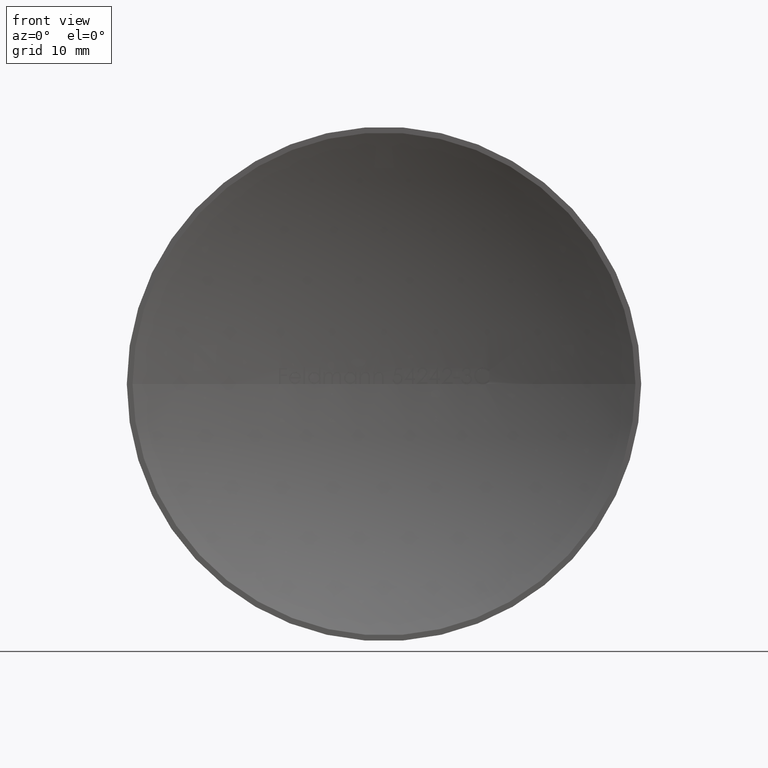
[diagram: clean part render]
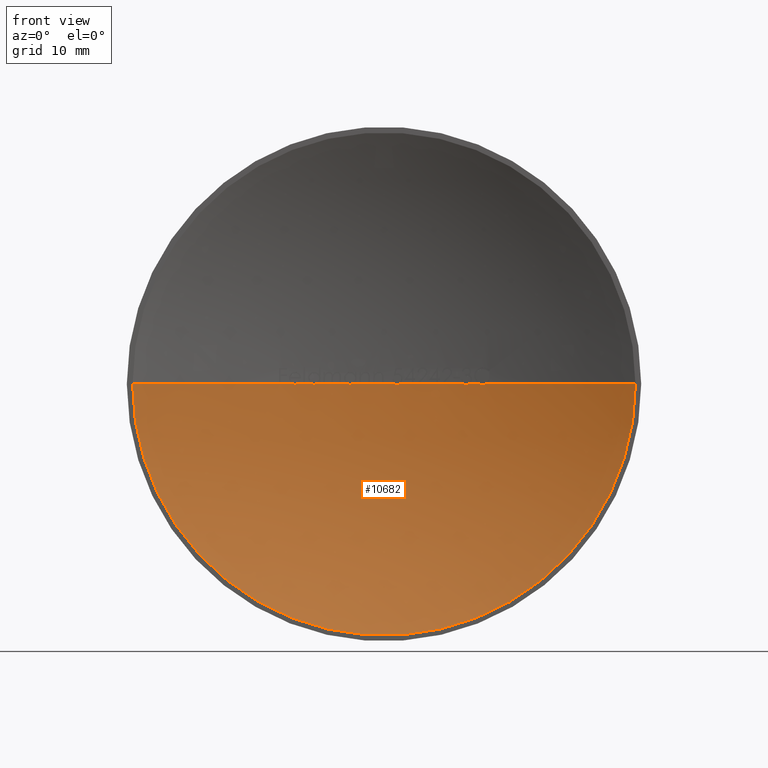
[diagram: same view with one face highlighted and labeled with its STEP entity id]
A machine part, front view. The second image highlights one B-rep face of the part: STEP entity #10682.
In plain terms, the highlighted spherical surface has radius 45.444 mm.
Its self-contained STEP definition (entity closure, byte-faithful):
#14 = CARTESIAN_POINT ( 'NONE',  ( -2.679114103950558600, 4.920964443180069200, -0.005846972361898890000 ) ) ;
#16 = ORIENTED_EDGE ( 'NONE', *, *, #3680, .T. ) ;
#17 = VERTEX_POINT ( 'NONE', #167 ) ;
#27 = CARTESIAN_POINT ( 'NONE',  ( 1.386522870055565900E-014, -40.44399999999998800, 0.0000000000000000000 ) ) ;
#81 = VERTEX_POINT ( 'NONE', #4336 ) ;
#83 = CARTESIAN_POINT ( 'NONE',  ( -7.314381847441536500, 4.407496352543542000, -0.01628311171690268900 ) ) ;
#107 = VERTEX_POINT ( 'NONE', #6018 ) ;
#116 = CARTESIAN_POINT ( 'NONE',  ( 6.724451272614726500, 4.499730931526225500, -0.02989297932489220000 ) ) ;
#167 = CARTESIAN_POINT ( 'NONE',  ( 3.261283127775577500E-013, 4.999999999999990200, 0.0000000000000000000 ) ) ;
#171 = DIRECTION ( 'NONE',  ( 0.0000000000000000000, 0.0000000000000000000, 1.000000000000000000 ) ) ;
#188 = CARTESIAN_POINT ( 'NONE',  ( -7.393169713930002600, 4.394607574660386500, -0.01574187870364589200 ) ) ;
#212 = DIRECTION ( 'NONE',  ( 1.000000000000000000, 0.0000000000000000000, 0.0000000000000000000 ) ) ;
#241 = CARTESIAN_POINT ( 'NONE',  ( 8.133605435363257600, 4.266182822167549700, -0.03392094017094016800 ) ) ;
#248 = DIRECTION ( 'NONE',  ( 0.0000000000000000000, -0.0000000000000000000, 1.000000000000000000 ) ) ;
#325 = DIRECTION ( 'NONE',  ( -1.000000000000000000, 0.0000000000000000000, 1.224646799147353200E-016 ) ) ;
#342 = DIRECTION ( 'NONE',  ( -1.000000000000000000, 0.0000000000000000000, 1.224646799147353200E-016 ) ) ;
#370 = CARTESIAN_POINT ( 'NONE',  ( 1.386522870055565900E-014, -40.44399999999998800, 0.0000000000000000000 ) ) ;
#398 = EDGE_CURVE ( 'NONE', #9395, #6154, #8161, .T. ) ;
#448 = CARTESIAN_POINT ( 'NONE',  ( -5.762849726228624000, 4.633116271733261900, -0.01696047008547015000 ) ) ;
#473 = DIRECTION ( 'NONE',  ( 1.000000000000000000, 0.0000000000000000000, 0.0000000000000000000 ) ) ;
#501 = VERTEX_POINT ( 'NONE', #8945 ) ;
#506 = EDGE_CURVE ( 'NONE', #5462, #107, #5511, .T. ) ;
#516 = CARTESIAN_POINT ( 'NONE',  ( 1.014728533184215500, 4.988661800723159300, -0.03003825177654923000 ) ) ;
#530 = DIRECTION ( 'NONE',  ( 0.0000000000000000000, -0.0000000000000000000, 1.000000000000000000 ) ) ;
#572 = VERTEX_POINT ( 'NONE', #7094 ) ;
#606 = AXIS2_PLACEMENT_3D ( 'NONE', #10703, #248, #7922 ) ;
#630 = EDGE_CURVE ( 'NONE', #8955, #8199, #3181, .T. ) ;
#689 = CARTESIAN_POINT ( 'NONE',  ( 1.386522870055565900E-014, -40.44399999999998800, 0.0000000000000000000 ) ) ;
#712 = CARTESIAN_POINT ( 'NONE',  ( 8.133605435363257600, 4.266182822167549700, -0.03392094017094016800 ) ) ;
#718 = CIRCLE ( 'NONE', #4372, 45.44399999999997400 ) ;
#727 = DIRECTION ( 'NONE',  ( -1.000000000000000000, 0.0000000000000000000, 1.224646799147353200E-016 ) ) ;
#734 = DIRECTION ( 'NONE',  ( 0.0000000000000000000, -0.0000000000000000000, 1.000000000000000000 ) ) ;
#797 = EDGE_CURVE ( 'NONE', #7213, #5435, #4330, .T. ) ;
#815 = DIRECTION ( 'NONE',  ( 1.000000000000000000, 0.0000000000000000000, 0.0000000000000000000 ) ) ;
#864 = VERTEX_POINT ( 'NONE', #241 ) ;
#874 = CIRCLE ( 'NONE', #11401, 45.44399999999997400 ) ;
#896 = DIRECTION ( 'NONE',  ( 1.000000000000000000, 0.0000000000000000000, 0.0000000000000000000 ) ) ;
#911 = ORIENTED_EDGE ( 'NONE', *, *, #9338, .T. ) ;
#915 = CARTESIAN_POINT ( 'NONE',  ( -0.04240117521366163600, 4.999980218950229400, 3.710188327710200200E-015 ) ) ;
#939 = CARTESIAN_POINT ( 'NONE',  ( 1.386522870055565900E-014, -40.44399999999998800, 0.0000000000000000000 ) ) ;
#941 = CARTESIAN_POINT ( 'NONE',  ( -7.333111059942088300, 4.404438093603746800, -0.01679781009455912400 ) ) ;
#948 = B_SPLINE_CURVE_WITH_KNOTS ( 'NONE', 3,
 ( #9863, #6129, #4164, #516, #1464, #3455, #5978, #9873 ),
 .UNSPECIFIED., .F., .F.,
 ( 4, 2, 2, 4 ),
 ( 0.0000000000000000000, 0.07081838298571586900, 0.1416367659714317400, 0.2832735319428635900 ),
 .UNSPECIFIED. ) ;
#973 = ORIENTED_EDGE ( 'NONE', *, *, #630, .T. ) ;
#993 = CARTESIAN_POINT ( 'NONE',  ( 5.622395833333349000, 4.650853377002071900, 3.681684523077653500E-015 ) ) ;
#999 = CARTESIAN_POINT ( 'NONE',  ( -6.504340277777768800, 4.532112477079168800, 3.550544559331930100E-015 ) ) ;
#1001 = CIRCLE ( 'NONE', #2943, 45.44399999999997400 ) ;
#1049 = ORIENTED_EDGE ( 'NONE', *, *, #6639, .T. ) ;
#1078 = AXIS2_PLACEMENT_3D ( 'NONE', #5407, #734, #815 ) ;
#1088 = CARTESIAN_POINT ( 'NONE',  ( 6.638206544388754800, 4.512558978705879300, -0.01193627597432813900 ) ) ;
#1093 = VERTEX_POINT ( 'NONE', #3965 ) ;
#1147 = AXIS2_PLACEMENT_3D ( 'NONE', #6918, #8662, #9638 ) ;
#1158 = DIRECTION ( 'NONE',  ( 0.0000000000000000000, -0.0000000000000000000, 1.000000000000000000 ) ) ;
#1217 = ORIENTED_EDGE ( 'NONE', *, *, #7167, .T. ) ;
#1264 = DIRECTION ( 'NONE',  ( 1.000000000000000000, 0.0000000000000000000, 0.0000000000000000000 ) ) ;
#1294 = EDGE_CURVE ( 'NONE', #17, #7607, #12006, .T. ) ;
#1304 = CARTESIAN_POINT ( 'NONE',  ( 1.386522870055565900E-014, -40.44399999999998800, 0.0000000000000000000 ) ) ;
#1313 = B_SPLINE_CURVE_WITH_KNOTS ( 'NONE', 3,
 ( #1426, #10733, #7995, #6992, #5149, #11740, #6095, #2393 ),
 .UNSPECIFIED., .F., .F.,
 ( 4, 2, 2, 4 ),
 ( 0.7251203329268308700, 0.8625601664634172700, 0.9312800832317086300, 1.000000000000000000 ),
 .UNSPECIFIED. ) ;
#1346 = AXIS2_PLACEMENT_3D ( 'NONE', #11609, #2088, #342 ) ;
#1348 = ORIENTED_EDGE ( 'NONE', *, *, #6998, .T. ) ;
#1349 = EDGE_CURVE ( 'NONE', #8950, #3156, #7275, .T. ) ;
#1357 = VERTEX_POINT ( 'NONE', #4271 ) ;
#1361 = EDGE_CURVE ( 'NONE', #9395, #5435, #3490, .T. ) ;
#1426 = CARTESIAN_POINT ( 'NONE',  ( 6.979097808173807300, 4.460891898451847300, 9.174615640513992500E-007 ) ) ;
#1439 = DIRECTION ( 'NONE',  ( 1.000000000000000000, 0.0000000000000000000, 0.0000000000000000000 ) ) ;
#1464 = CARTESIAN_POINT ( 'NONE',  ( 1.002372953610557700, 4.988937426252459100, -0.02840826843126044100 ) ) ;
#1486 = VERTEX_POINT ( 'NONE', #9036 ) ;
#1488 = CARTESIAN_POINT ( 'NONE',  ( 1.386522870055565900E-014, -40.44399999999998800, 0.0000000000000000000 ) ) ;
#1504 = CARTESIAN_POINT ( 'NONE',  ( -5.704693327859122800, 4.640515581860194400, -0.01425381855370564400 ) ) ;
#1545 = ORIENTED_EDGE ( 'NONE', *, *, #6067, .T. ) ;
#1556 = CARTESIAN_POINT ( 'NONE',  ( -4.316439636752120300, 4.794539817972398600, 0.0000000000000000000 ) ) ;
#1577 = DIRECTION ( 'NONE',  ( 1.000000000000000000, 0.0000000000000000000, 0.0000000000000000000 ) ) ;
#1581 = VERTEX_POINT ( 'NONE', #2198 ) ;
#1598 = ORIENTED_EDGE ( 'NONE', *, *, #4631, .F. ) ;
#1599 = CARTESIAN_POINT ( 'NONE',  ( -6.623063568376063700, 4.514782956940112300, 8.110913599561596300E-016 ) ) ;
#1606 = CARTESIAN_POINT ( 'NONE',  ( -5.367988782051274800, 4.681844395820127700, 3.286945139899200600E-016 ) ) ;
#1637 = CARTESIAN_POINT ( 'NONE',  ( 1.386522870055565900E-014, -40.44399999999998800, 0.0000000000000000000 ) ) ;
#1655 = CARTESIAN_POINT ( 'NONE',  ( -8.522636217948717200, 4.193672518809803400, 3.776991055038267300E-015 ) ) ;
#1656 = DIRECTION ( 'NONE',  ( 0.0000000000000000000, -0.0000000000000000000, 1.000000000000000000 ) ) ;
#1716 = CARTESIAN_POINT ( 'NONE',  ( 1.386522870055565900E-014, -40.44399999999998800, 0.0000000000000000000 ) ) ;
#1724 = DIRECTION ( 'NONE',  ( 0.0000000000000000000, 0.0000000000000000000, -1.000000000000000000 ) ) ;
#1856 = B_SPLINE_CURVE_WITH_KNOTS ( 'NONE', 3,
 ( #4389, #10977, #9165, #11019 ),
 .UNSPECIFIED., .F., .F.,
 ( 4, 4 ),
 ( 0.0000000000000000000, 0.1700438044894193600 ),
 .UNSPECIFIED. ) ;
#1931 = CARTESIAN_POINT ( 'NONE',  ( 1.386522870055565900E-014, -40.44399999999998800, 0.0000000000000000000 ) ) ;
#1968 = DIRECTION ( 'NONE',  ( 0.0000000000000000000, -0.0000000000000000000, 1.000000000000000000 ) ) ;
#1975 = CARTESIAN_POINT ( 'NONE',  ( -7.221433323400017200, 4.422564156808297400, -0.005997358268083809000 ) ) ;
#1989 = CARTESIAN_POINT ( 'NONE',  ( -7.340968466212600200, 4.403151864087489800, -0.01696047008547008800 ) ) ;
#2007 = CARTESIAN_POINT ( 'NONE',  ( 6.609436789837456400, 4.516788250580524400, -1.063111090567232100E-005 ) ) ;
#2015 = EDGE_CURVE ( 'NONE', #3852, #2351, #8973, .T. ) ;
#2024 = VERTEX_POINT ( 'NONE', #1989 ) ;
#2030 = ORIENTED_EDGE ( 'NONE', *, *, #11688, .T. ) ;
#2058 = DIRECTION ( 'NONE',  ( 1.000000000000000000, -6.932614350277812000E-015, 0.0000000000000000000 ) ) ;
#2081 = EDGE_CURVE ( 'NONE', #7805, #6516, #8400, .T. ) ;
#2088 = DIRECTION ( 'NONE',  ( -1.224646799147353200E-016, 8.490003973790729900E-031, -1.000000000000000000 ) ) ;
#2106 = ORIENTED_EDGE ( 'NONE', *, *, #11613, .T. ) ;
#2150 = EDGE_CURVE ( 'NONE', #107, #4124, #6758, .T. ) ;
#2158 = DIRECTION ( 'NONE',  ( -1.224646799147353200E-016, 8.490003973790729900E-031, -1.000000000000000000 ) ) ;
#2171 = ORIENTED_EDGE ( 'NONE', *, *, #10338, .T. ) ;
#2197 = CARTESIAN_POINT ( 'NONE',  ( 1.386522870055565900E-014, -40.44399999999998800, 0.0000000000000000000 ) ) ;
#2198 = CARTESIAN_POINT ( 'NONE',  ( -2.281183226495715000, 4.942708837358471100, 3.705512513433595300E-015 ) ) ;
#2207 = CARTESIAN_POINT ( 'NONE',  ( -7.480859684291450800, 4.380031973938734800, 2.700053213682026500E-006 ) ) ;
#2234 = CARTESIAN_POINT ( 'NONE',  ( 1.386522870055565900E-014, -40.44399999999998800, 0.0000000000000000000 ) ) ;
#2247 = EDGE_CURVE ( 'NONE', #11366, #864, #6520, .T. ) ;
#2249 = EDGE_CURVE ( 'NONE', #3010, #5156, #2391, .T. ) ;
#2269 = EDGE_CURVE ( 'NONE', #4307, #6558, #4109, .T. ) ;
#2323 = EDGE_CURVE ( 'NONE', #6961, #9671, #8681, .T. ) ;
#2328 = DIRECTION ( 'NONE',  ( -1.224646799147353200E-016, 8.490003973790729900E-031, -1.000000000000000000 ) ) ;
#2351 = VERTEX_POINT ( 'NONE', #3262 ) ;
#2362 = DIRECTION ( 'NONE',  ( 1.000000000000000000, 0.0000000000000000000, 0.0000000000000000000 ) ) ;
#2369 = VERTEX_POINT ( 'NONE', #10046 ) ;
#2391 = CIRCLE ( 'NONE', #6180, 45.44399999999997400 ) ;
#2393 = CARTESIAN_POINT ( 'NONE',  ( 6.792933276575872100, 4.489417885464773100, -0.03392094017094018900 ) ) ;
#2435 = CARTESIAN_POINT ( 'NONE',  ( -2.399906517094007700, 4.936585989046116100, 1.469518917206229300E-016 ) ) ;
#2477 = AXIS2_PLACEMENT_3D ( 'NONE', #1716, #8185, #7226 ) ;
#2478 = CARTESIAN_POINT ( 'NONE',  ( -0.1611244658119528900, 4.999714360805894500, 9.866028066067023700E-018 ) ) ;
#2509 = CARTESIAN_POINT ( 'NONE',  ( -8.641359508547008500, 4.170841049185001200, 1.058261326242403800E-015 ) ) ;
#2527 = ORIENTED_EDGE ( 'NONE', *, *, #9698, .F. ) ;
#2546 = DIRECTION ( 'NONE',  ( -1.000000000000000000, 6.871099059850044800E-015, 0.0000000000000000000 ) ) ;
#2548 = ORIENTED_EDGE ( 'NONE', *, *, #1361, .F. ) ;
#2560 = CARTESIAN_POINT ( 'NONE',  ( -4.977897970085456000, 4.726539821873039700, 0.0000000000000000000 ) ) ;
#2584 = CIRCLE ( 'NONE', #3879, 45.44399999999997400 ) ;
#2637 = CARTESIAN_POINT ( 'NONE',  ( 7.929384399380911200, 4.302882986832701200, -0.01174554380527391600 ) ) ;
#2680 = CARTESIAN_POINT ( 'NONE',  ( 7.890765260046894300, 4.309691478659007500, 8.390780248194834200E-006 ) ) ;
#2748 = ORIENTED_EDGE ( 'NONE', *, *, #2081, .F. ) ;
#2751 = CARTESIAN_POINT ( 'NONE',  ( -2.701733337534579300, 4.919622218299096500, -0.01009469553859961700 ) ) ;
#2758 = CIRCLE ( 'NONE', #3569, 45.44399999999997400 ) ;
#2776 = AXIS2_PLACEMENT_3D ( 'NONE', #5822, #1158, #3109 ) ;
#2842 = AXIS2_PLACEMENT_3D ( 'NONE', #5077, #530, #8983 ) ;
#2860 = CARTESIAN_POINT ( 'NONE',  ( -7.244974493819240600, 4.418768193147572600, -0.01038088831780244000 ) ) ;
#2908 = ORIENTED_EDGE ( 'NONE', *, *, #4733, .T. ) ;
#2943 = AXIS2_PLACEMENT_3D ( 'NONE', #370, #6967, #1439 ) ;
#2962 = CIRCLE ( 'NONE', #2776, 45.44399999999997400 ) ;
#3010 = VERTEX_POINT ( 'NONE', #10031 ) ;
#3012 = VERTEX_POINT ( 'NONE', #2435 ) ;
#3014 = AXIS2_PLACEMENT_3D ( 'NONE', #10608, #7790, #2058 ) ;
#3028 = CARTESIAN_POINT ( 'NONE',  ( 8.212265828331114300, 4.251808247920385100, -0.03082779148671084900 ) ) ;
#3109 = DIRECTION ( 'NONE',  ( 1.000000000000000000, 0.0000000000000000000, 0.0000000000000000000 ) ) ;
#3126 = ORIENTED_EDGE ( 'NONE', *, *, #8700, .T. ) ;
#3134 = AXIS2_PLACEMENT_3D ( 'NONE', #1304, #9634, #1264 ) ;
#3142 = CARTESIAN_POINT ( 'NONE',  ( 8.290363764906809200, 4.237407642485830900, -0.02042201513823848100 ) ) ;
#3156 = VERTEX_POINT ( 'NONE', #8407 ) ;
#3181 = CIRCLE ( 'NONE', #11390, 45.44399999999997400 ) ;
#3204 = ORIENTED_EDGE ( 'NONE', *, *, #4577, .T. ) ;
#3205 = DIRECTION ( 'NONE',  ( 0.0000000000000000000, -0.0000000000000000000, 1.000000000000000000 ) ) ;
#3208 = ORIENTED_EDGE ( 'NONE', *, *, #3848, .T. ) ;
#3262 = CARTESIAN_POINT ( 'NONE',  ( -7.198436135976732200, 4.426253353771013400, 4.207915204690075500E-008 ) ) ;
#3304 = CARTESIAN_POINT ( 'NONE',  ( 8.133605435363257600, 4.266182822167549700, -0.03392094017094016800 ) ) ;
#3369 = DIRECTION ( 'NONE',  ( -1.224646799147353200E-016, 8.490003973790729900E-031, -1.000000000000000000 ) ) ;
#3374 = ORIENTED_EDGE ( 'NONE', *, *, #506, .T. ) ;
#3391 = CARTESIAN_POINT ( 'NONE',  ( -5.896522740003722300, 4.615828480647926400, 3.430909985168323400E-006 ) ) ;
#3402 = AXIS2_PLACEMENT_3D ( 'NONE', #10250, #4624, #12125 ) ;
#3455 = CARTESIAN_POINT ( 'NONE',  ( 0.9581002630905775000, 4.989904552443081600, -0.01999969564630915700 ) ) ;
#3490 = CIRCLE ( 'NONE', #10257, 45.44399999999997400 ) ;
#3521 = EDGE_CURVE ( 'NONE', #5473, #3156, #11024, .T. ) ;
#3533 = DIRECTION ( 'NONE',  ( -1.000000000000000000, 0.0000000000000000000, 1.224646799147353200E-016 ) ) ;
#3540 = CARTESIAN_POINT ( 'NONE',  ( 1.107055135677599100, 4.986513517667621200, -0.03361714102808034000 ) ) ;
#3569 = AXIS2_PLACEMENT_3D ( 'NONE', #7075, #5145, #473 ) ;
#3579 = CARTESIAN_POINT ( 'NONE',  ( -5.669922600466428300, 4.644907339809656800, -0.01010721599560397700 ) ) ;
#3651 = CARTESIAN_POINT ( 'NONE',  ( 1.386522870055565900E-014, -40.44399999999998800, 0.0000000000000000000 ) ) ;
#3653 = CIRCLE ( 'NONE', #11440, 45.44399999999997400 ) ;
#3680 = EDGE_CURVE ( 'NONE', #10187, #8955, #2962, .T. ) ;
#3690 = CARTESIAN_POINT ( 'NONE',  ( 1.386522870055565900E-014, -40.44399999999998800, 0.0000000000000000000 ) ) ;
#3704 = CARTESIAN_POINT ( 'NONE',  ( 1.137864784276368500, 4.985752631226293200, -0.03129581956631803700 ) ) ;
#3744 = VERTEX_POINT ( 'NONE', #4108 ) ;
#3777 = CIRCLE ( 'NONE', #3014, 20.72293415518182500 ) ;
#3791 = ORIENTED_EDGE ( 'NONE', *, *, #6182, .T. ) ;
#3793 = CARTESIAN_POINT ( 'NONE',  ( -2.779501606373528900, 4.914918253170339900, -0.01660659333544091400 ) ) ;
#3848 = EDGE_CURVE ( 'NONE', #9358, #5462, #7619, .T. ) ;
#3852 = VERTEX_POINT ( 'NONE', #1599 ) ;
#3854 = ORIENTED_EDGE ( 'NONE', *, *, #7969, .T. ) ;
#3874 = ORIENTED_EDGE ( 'NONE', *, *, #11581, .F. ) ;
#3879 = AXIS2_PLACEMENT_3D ( 'NONE', #6819, #3205, #8645 ) ;
#3965 = CARTESIAN_POINT ( 'NONE',  ( 4.723490918803434200, 4.753851381896251600, -4.336808689942017700E-016 ) ) ;
#3966 = ORIENTED_EDGE ( 'NONE', *, *, #10630, .T. ) ;
#3981 = ORIENTED_EDGE ( 'NONE', *, *, #4421, .T. ) ;
#4064 = VERTEX_POINT ( 'NONE', #993 ) ;
#4094 = ORIENTED_EDGE ( 'NONE', *, *, #7399, .T. ) ;
#4108 = CARTESIAN_POINT ( 'NONE',  ( -2.656451471895612500, 4.922291348733441700, -3.641932236903933100E-006 ) ) ;
#4109 = B_SPLINE_CURVE_WITH_KNOTS ( 'NONE', 3,
 ( #448, #9792, #6962, #6144 ),
 .UNSPECIFIED., .F., .F.,
 ( 4, 4 ),
 ( 0.0000000000000000000, 0.1700436604943625400 ),
 .UNSPECIFIED. ) ;
#4124 = VERTEX_POINT ( 'NONE', #6842 ) ;
#4164 = CARTESIAN_POINT ( 'NONE',  ( 1.042776080441258700, 4.988024836875408300, -0.03273925950831074000 ) ) ;
#4178 = CARTESIAN_POINT ( 'NONE',  ( 1.386522870055565900E-014, -40.44399999999998800, 0.0000000000000000000 ) ) ;
#4223 = AXIS2_PLACEMENT_3D ( 'NONE', #3690, #8353, #8314 ) ;
#4271 = CARTESIAN_POINT ( 'NONE',  ( -20.72293415518153000, 2.826009576832199400E-013, 0.0000000000000000000 ) ) ;
#4277 = EDGE_CURVE ( 'NONE', #7041, #11187, #9102, .T. ) ;
#4302 = CARTESIAN_POINT ( 'NONE',  ( -2.794767461271358200, 4.913977503189801900, -0.01696047008547011500 ) ) ;
#4307 = VERTEX_POINT ( 'NONE', #11999 ) ;
#4330 = CIRCLE ( 'NONE', #3134, 45.44399999999997400 ) ;
#4336 = CARTESIAN_POINT ( 'NONE',  ( 6.609436789837456400, 4.516788250580524400, -1.063111090567232100E-005 ) ) ;
#4348 = DIRECTION ( 'NONE',  ( -1.000000000000000000, 0.0000000000000000000, 1.224646799147353200E-016 ) ) ;
#4363 = ORIENTED_EDGE ( 'NONE', *, *, #797, .T. ) ;
#4372 = AXIS2_PLACEMENT_3D ( 'NONE', #11004, #6320, #6359 ) ;
#4389 = CARTESIAN_POINT ( 'NONE',  ( -2.794767461271358200, 4.913977503189801900, -0.01696047008547011500 ) ) ;
#4417 = CARTESIAN_POINT ( 'NONE',  ( 2.416866987179499200, 4.935685873375995000, 4.046339830373139300E-015 ) ) ;
#4421 = EDGE_CURVE ( 'NONE', #2351, #2024, #7846, .T. ) ;
#4440 = DIRECTION ( 'NONE',  ( 1.000000000000000000, 0.0000000000000000000, 0.0000000000000000000 ) ) ;
#4577 = EDGE_CURVE ( 'NONE', #9869, #572, #948, .T. ) ;
#4579 = ORIENTED_EDGE ( 'NONE', *, *, #9247, .T. ) ;
#4624 = DIRECTION ( 'NONE',  ( 0.0000000000000000000, 0.0000000000000000000, 1.000000000000000000 ) ) ;
#4631 = EDGE_CURVE ( 'NONE', #17, #572, #10854, .T. ) ;
#4705 = DIRECTION ( 'NONE',  ( 0.0000000000000000000, 0.0000000000000000000, 1.000000000000000000 ) ) ;
#4707 = VERTEX_POINT ( 'NONE', #999 ) ;
#4733 = EDGE_CURVE ( 'NONE', #1581, #3012, #874, .T. ) ;
#4915 = EDGE_CURVE ( 'NONE', #5880, #7155, #5852, .T. ) ;
#4977 = VERTEX_POINT ( 'NONE', #4302 ) ;
#5027 = ORIENTED_EDGE ( 'NONE', *, *, #7740, .F. ) ;
#5036 = CARTESIAN_POINT ( 'NONE',  ( 8.366409897617877800, 4.223217413644833100, -3.862612941014377900E-006 ) ) ;
#5039 = CARTESIAN_POINT ( 'NONE',  ( 1.386522870055565900E-014, -40.44399999999998800, 0.0000000000000000000 ) ) ;
#5056 = EDGE_CURVE ( 'NONE', #3012, #3744, #718, .T. ) ;
#5077 = CARTESIAN_POINT ( 'NONE',  ( 1.386522870055565900E-014, -40.44399999999998800, 0.0000000000000000000 ) ) ;
#5082 = CARTESIAN_POINT ( 'NONE',  ( 7.890765260046894300, 4.309691478659007500, 8.390780248194834200E-006 ) ) ;
#5084 = CIRCLE ( 'NONE', #9590, 45.44399999999997400 ) ;
#5145 = DIRECTION ( 'NONE',  ( 0.0000000000000000000, 0.0000000000000000000, 1.000000000000000000 ) ) ;
#5149 = CARTESIAN_POINT ( 'NONE',  ( 6.860537610743779000, 4.479151201157087300, -0.02985421978745027600 ) ) ;
#5156 = VERTEX_POINT ( 'NONE', #10376 ) ;
#5158 = CARTESIAN_POINT ( 'NONE',  ( 1.386522870055565900E-014, -40.44399999999998800, 0.0000000000000000000 ) ) ;
#5183 = CARTESIAN_POINT ( 'NONE',  ( -2.009815705128192900, 4.955534984748682700, 0.0000000000000000000 ) ) ;
#5251 = CARTESIAN_POINT ( 'NONE',  ( 1.386522870055565900E-014, -40.44399999999998800, 0.0000000000000000000 ) ) ;
#5271 = CARTESIAN_POINT ( 'NONE',  ( -5.713053913165618200, 4.639456456852899500, -0.01493672013989933400 ) ) ;
#5279 = AXIS2_PLACEMENT_3D ( 'NONE', #10184, #1724, #2546 ) ;
#5296 = DIRECTION ( 'NONE',  ( 0.0000000000000000000, 0.0000000000000000000, 1.000000000000000000 ) ) ;
#5399 = CARTESIAN_POINT ( 'NONE',  ( -0.7717013888888755200, 4.993447254069918600, 3.709654956074892900E-015 ) ) ;
#5407 = CARTESIAN_POINT ( 'NONE',  ( 1.386522870055565900E-014, -40.44399999999998800, 0.0000000000000000000 ) ) ;
#5420 = AXIS2_PLACEMENT_3D ( 'NONE', #9963, #10920, #1577 ) ;
#5435 = VERTEX_POINT ( 'NONE', #10732 ) ;
#5441 = ORIENTED_EDGE ( 'NONE', *, *, #2015, .T. ) ;
#5462 = VERTEX_POINT ( 'NONE', #5399 ) ;
#5473 = VERTEX_POINT ( 'NONE', #7238 ) ;
#5494 = CIRCLE ( 'NONE', #12136, 45.44399999999997400 ) ;
#5511 = CIRCLE ( 'NONE', #9930, 45.44399999999997400 ) ;
#5516 = AXIS2_PLACEMENT_3D ( 'NONE', #3651, #11929, #4440 ) ;
#5523 = DIRECTION ( 'NONE',  ( 1.000000000000000000, 0.0000000000000000000, 0.0000000000000000000 ) ) ;
#5541 = EDGE_CURVE ( 'NONE', #5473, #9869, #11484, .T. ) ;
#5576 = CARTESIAN_POINT ( 'NONE',  ( -2.766482382079042500, 4.915713049121595000, -0.01612952267792415500 ) ) ;
#5596 = B_SPLINE_CURVE_WITH_KNOTS ( 'NONE', 3,
 ( #712, #7268, #10102, #8229, #2637, #2680 ),
 .UNSPECIFIED., .F., .F.,
 ( 4, 2, 4 ),
 ( 0.0000000000000000000, 0.2001872501250542000, 0.4003745002501084000 ),
 .UNSPECIFIED. ) ;
#5615 = CARTESIAN_POINT ( 'NONE',  ( -2.794767461271358200, 4.913977503189801900, -0.01696047008547011500 ) ) ;
#5625 = AXIS2_PLACEMENT_3D ( 'NONE', #27, #7586, #6722 ) ;
#5695 = CIRCLE ( 'NONE', #3402, 45.44399999999997400 ) ;
#5734 = ORIENTED_EDGE ( 'NONE', *, *, #4915, .T. ) ;
#5761 = EDGE_CURVE ( 'NONE', #4977, #11910, #1856, .T. ) ;
#5777 = CARTESIAN_POINT ( 'NONE',  ( 1.386522870055565900E-014, -40.44399999999998800, 0.0000000000000000000 ) ) ;
#5807 = VERTEX_POINT ( 'NONE', #9931 ) ;
#5822 = CARTESIAN_POINT ( 'NONE',  ( 1.386522870055565900E-014, -40.44399999999998800, 0.0000000000000000000 ) ) ;
#5852 = CIRCLE ( 'NONE', #606, 45.44399999999997400 ) ;
#5876 = ORIENTED_EDGE ( 'NONE', *, *, #4277, .T. ) ;
#5880 = VERTEX_POINT ( 'NONE', #10218 ) ;
#5915 = CARTESIAN_POINT ( 'NONE',  ( -7.340968466212600200, 4.403151864087489800, -0.01696047008547008800 ) ) ;
#5978 = CARTESIAN_POINT ( 'NONE',  ( 0.9330074059976478700, 4.990429141400746000, -0.01214954378330741400 ) ) ;
#6018 = CARTESIAN_POINT ( 'NONE',  ( -0.8904246794871678600, 4.991275721515753700, 0.0000000000000000000 ) ) ;
#6020 = CARTESIAN_POINT ( 'NONE',  ( 8.159855952866824000, 4.261407609356233200, -0.03360508691657830600 ) ) ;
#6067 = EDGE_CURVE ( 'NONE', #5807, #6961, #8502, .T. ) ;
#6095 = CARTESIAN_POINT ( 'NONE',  ( 6.812275840214361700, 4.486494167845817700, -0.03332783625234016900 ) ) ;
#6109 = ORIENTED_EDGE ( 'NONE', *, *, #2269, .T. ) ;
#6129 = CARTESIAN_POINT ( 'NONE',  ( 1.057705604715983400, 4.987679658456321400, -0.03360629555779933600 ) ) ;
#6144 = CARTESIAN_POINT ( 'NONE',  ( -5.896522740003722300, 4.615828480647926400, 3.430909985168323400E-006 ) ) ;
#6154 = VERTEX_POINT ( 'NONE', #9239 ) ;
#6180 = AXIS2_PLACEMENT_3D ( 'NONE', #4178, #6188, #8941 ) ;
#6182 = EDGE_CURVE ( 'NONE', #7607, #9358, #5695, .T. ) ;
#6188 = DIRECTION ( 'NONE',  ( 0.0000000000000000000, 0.0000000000000000000, 1.000000000000000000 ) ) ;
#6260 = CARTESIAN_POINT ( 'NONE',  ( -5.734593673463536800, 4.636721260913137000, -0.01613113211277015700 ) ) ;
#6297 = CARTESIAN_POINT ( 'NONE',  ( 1.386522870055565900E-014, -40.44399999999998800, 0.0000000000000000000 ) ) ;
#6320 = DIRECTION ( 'NONE',  ( 0.0000000000000000000, -0.0000000000000000000, 1.000000000000000000 ) ) ;
#6333 = CARTESIAN_POINT ( 'NONE',  ( 1.386522870055565900E-014, -40.44399999999998800, 0.0000000000000000000 ) ) ;
#6359 = DIRECTION ( 'NONE',  ( 1.000000000000000000, 0.0000000000000000000, 0.0000000000000000000 ) ) ;
#6378 = CIRCLE ( 'NONE', #7235, 45.44399999999997400 ) ;
#6391 = CIRCLE ( 'NONE', #10607, 45.44399999999997400 ) ;
#6418 = EDGE_CURVE ( 'NONE', #8199, #1357, #1001, .T. ) ;
#6464 = ORIENTED_EDGE ( 'NONE', *, *, #11847, .T. ) ;
#6466 = CARTESIAN_POINT ( 'NONE',  ( 1.073544754941253300, 4.987305143358527800, -0.03392094017094019600 ) ) ;
#6516 = VERTEX_POINT ( 'NONE', #5082 ) ;
#6520 = B_SPLINE_CURVE_WITH_KNOTS ( 'NONE', 3,
 ( #5036, #7663, #3142, #11635, #3028, #10743, #6020, #3304 ),
 .UNSPECIFIED., .F., .F.,
 ( 4, 2, 2, 4 ),
 ( 0.6446147371736619100, 0.8223073685868309600, 0.9111536842934154800, 1.000000000000000000 ),
 .UNSPECIFIED. ) ;
#6540 = CARTESIAN_POINT ( 'NONE',  ( 1.386522870055565900E-014, -40.44399999999998800, 0.0000000000000000000 ) ) ;
#6558 = VERTEX_POINT ( 'NONE', #3391 ) ;
#6562 = CARTESIAN_POINT ( 'NONE',  ( -7.326222167545159500, 4.405563701466944900, -0.01662985162751632100 ) ) ;
#6599 = CARTESIAN_POINT ( 'NONE',  ( -7.311094836632966200, 4.408032375733525600, -0.01618479906554667500 ) ) ;
#6639 = EDGE_CURVE ( 'NONE', #3744, #4977, #6652, .T. ) ;
#6652 = B_SPLINE_CURVE_WITH_KNOTS ( 'NONE', 3,
 ( #10169, #14, #2751, #9393, #10210, #5576, #3793, #5615 ),
 .UNSPECIFIED., .F., .F.,
 ( 4, 2, 2, 4 ),
 ( 0.6915283847761056800, 0.8457641923880544500, 0.9228820961940271700, 1.000000000000000000 ),
 .UNSPECIFIED. ) ;
#6712 = CARTESIAN_POINT ( 'NONE',  ( 8.366409897617877800, 4.223217413644833100, -3.862612941014377900E-006 ) ) ;
#6722 = DIRECTION ( 'NONE',  ( 1.000000000000000000, 0.0000000000000000000, 0.0000000000000000000 ) ) ;
#6754 = CARTESIAN_POINT ( 'NONE',  ( -2.928441392880105600, 4.905546357617097900, 6.363390768022825300E-007 ) ) ;
#6758 = CIRCLE ( 'NONE', #7660, 45.44399999999997400 ) ;
#6805 = DIRECTION ( 'NONE',  ( 1.000000000000000000, 0.0000000000000000000, 0.0000000000000000000 ) ) ;
#6819 = CARTESIAN_POINT ( 'NONE',  ( 1.386522870055565900E-014, -40.44399999999998800, 0.0000000000000000000 ) ) ;
#6842 = CARTESIAN_POINT ( 'NONE',  ( -1.161792200854689000, 4.985146754941725400, 3.708977277428982700E-015 ) ) ;
#6889 = DIRECTION ( 'NONE',  ( 1.000000000000000000, 0.0000000000000000000, 0.0000000000000000000 ) ) ;
#6890 = CARTESIAN_POINT ( 'NONE',  ( 1.386522870055565900E-014, -40.44399999999998800, 0.0000000000000000000 ) ) ;
#6918 = CARTESIAN_POINT ( 'NONE',  ( 1.386522870055565900E-014, -40.44399999999998800, 0.0000000000000000000 ) ) ;
#6961 = VERTEX_POINT ( 'NONE', #1556 ) ;
#6962 = CARTESIAN_POINT ( 'NONE',  ( -5.856450008393483800, 4.621072536190929700, -0.01005967850726104800 ) ) ;
#6966 = CIRCLE ( 'NONE', #2477, 45.44399999999997400 ) ;
#6967 = DIRECTION ( 'NONE',  ( 0.0000000000000000000, -0.0000000000000000000, 1.000000000000000000 ) ) ;
#6992 = CARTESIAN_POINT ( 'NONE',  ( 6.872159992264321300, 4.477375513965577100, -0.02857916790087721600 ) ) ;
#6998 = EDGE_CURVE ( 'NONE', #7805, #1486, #1313, .T. ) ;
#7030 = DIRECTION ( 'NONE',  ( 0.0000000000000000000, 0.0000000000000000000, 1.000000000000000000 ) ) ;
#7032 = VERTEX_POINT ( 'NONE', #1606 ) ;
#7041 = VERTEX_POINT ( 'NONE', #2560 ) ;
#7075 = CARTESIAN_POINT ( 'NONE',  ( 1.386522870055565900E-014, -40.44399999999998800, 0.0000000000000000000 ) ) ;
#7094 = CARTESIAN_POINT ( 'NONE',  ( 0.9062174185939975100, 4.990963363236520700, 9.662721608794933100E-006 ) ) ;
#7098 = EDGE_CURVE ( 'NONE', #10045, #1581, #5084, .T. ) ;
#7155 = VERTEX_POINT ( 'NONE', #11169 ) ;
#7167 = EDGE_CURVE ( 'NONE', #11187, #7032, #10815, .T. ) ;
#7199 = CARTESIAN_POINT ( 'NONE',  ( -5.647049179699403800, 4.647778489305471400, -0.005814966494200243600 ) ) ;
#7213 = VERTEX_POINT ( 'NONE', #8713 ) ;
#7226 = DIRECTION ( 'NONE',  ( 1.000000000000000000, 0.0000000000000000000, 0.0000000000000000000 ) ) ;
#7235 = AXIS2_PLACEMENT_3D ( 'NONE', #5158, #8864, #325 ) ;
#7238 = CARTESIAN_POINT ( 'NONE',  ( 1.261122111499390000, 4.982497773332117000, -9.195197976690849500E-007 ) ) ;
#7268 = CARTESIAN_POINT ( 'NONE',  ( 8.088894603344421300, 4.274316781790274100, -0.03360976153007725500 ) ) ;
#7275 = CIRCLE ( 'NONE', #8624, 45.44399999999997400 ) ;
#7334 = ORIENTED_EDGE ( 'NONE', *, *, #7098, .T. ) ;
#7382 = ORIENTED_EDGE ( 'NONE', *, *, #10707, .T. ) ;
#7399 = EDGE_CURVE ( 'NONE', #6558, #4707, #3653, .T. ) ;
#7492 = CARTESIAN_POINT ( 'NONE',  ( -7.198436135976732200, 4.426253353771013400, 4.207915204690075500E-008 ) ) ;
#7562 = CARTESIAN_POINT ( 'NONE',  ( 6.792933276575872100, 4.489417885464773100, -0.03392094017094018900 ) ) ;
#7586 = DIRECTION ( 'NONE',  ( 0.0000000000000000000, -0.0000000000000000000, 1.000000000000000000 ) ) ;
#7607 = VERTEX_POINT ( 'NONE', #915 ) ;
#7618 = CARTESIAN_POINT ( 'NONE',  ( 1.386522870055565900E-014, -40.44399999999998800, 0.0000000000000000000 ) ) ;
#7619 = CIRCLE ( 'NONE', #11171, 45.44399999999997400 ) ;
#7660 = AXIS2_PLACEMENT_3D ( 'NONE', #2234, #9561, #6805 ) ;
#7663 = CARTESIAN_POINT ( 'NONE',  ( 8.329078581822841400, 4.230209880075120700, -0.01173266730863417900 ) ) ;
#7666 = DIRECTION ( 'NONE',  ( 0.0000000000000000000, 0.0000000000000000000, 1.000000000000000000 ) ) ;
#7740 = EDGE_CURVE ( 'NONE', #4064, #81, #11140, .T. ) ;
#7790 = DIRECTION ( 'NONE',  ( -6.932614350277811200E-015, -1.000000000000000000, -0.0000000000000000000 ) ) ;
#7805 = VERTEX_POINT ( 'NONE', #9269 ) ;
#7813 = CARTESIAN_POINT ( 'NONE',  ( -7.439807706116837100, 4.386883658046935300, -0.01015786540888053400 ) ) ;
#7817 = AXIS2_PLACEMENT_3D ( 'NONE', #5039, #7666, #11555 ) ;
#7846 = B_SPLINE_CURVE_WITH_KNOTS ( 'NONE', 3,
 ( #7492, #1975, #2860, #11263, #9465, #6599, #83, #6562, #941, #10330 ),
 .UNSPECIFIED., .F., .F.,
 ( 4, 2, 2, 2, 4 ),
 ( 0.7360855757484376900, 0.8680427878742215100, 0.9340213939371111400, 0.9670106969685555700, 1.000000000000000000 ),
 .UNSPECIFIED. ) ;
#7858 = B_SPLINE_CURVE_WITH_KNOTS ( 'NONE', 3,
 ( #10071, #7199, #3579, #1504, #5271, #6260, #9054, #8071 ),
 .UNSPECIFIED., .F., .F.,
 ( 4, 2, 2, 4 ),
 ( 0.6910401077249339600, 0.8455200538624700900, 0.9227600269312350400, 1.000000000000000000 ),
 .UNSPECIFIED. ) ;
#7922 = DIRECTION ( 'NONE',  ( 1.000000000000000000, 0.0000000000000000000, 0.0000000000000000000 ) ) ;
#7947 = DIRECTION ( 'NONE',  ( 1.000000000000000000, 0.0000000000000000000, 0.0000000000000000000 ) ) ;
#7962 = AXIS2_PLACEMENT_3D ( 'NONE', #6540, #9332, #9252 ) ;
#7969 = EDGE_CURVE ( 'NONE', #11910, #3010, #9925, .T. ) ;
#7986 = AXIS2_PLACEMENT_3D ( 'NONE', #11001, #1656, #9145 ) ;
#7995 = CARTESIAN_POINT ( 'NONE',  ( 6.917631111062535300, 4.470408032699696200, -0.02083417172734258700 ) ) ;
#7998 = CIRCLE ( 'NONE', #5516, 45.44399999999997400 ) ;
#8009 = CARTESIAN_POINT ( 'NONE',  ( 1.386522870055565900E-014, -40.44399999999998800, 0.0000000000000000000 ) ) ;
#8071 = CARTESIAN_POINT ( 'NONE',  ( -5.762849726228624000, 4.633116271733261900, -0.01696047008547015000 ) ) ;
#8161 = CIRCLE ( 'NONE', #7817, 45.44399999999997400 ) ;
#8185 = DIRECTION ( 'NONE',  ( 0.0000000000000000000, -0.0000000000000000000, 1.000000000000000000 ) ) ;
#8199 = VERTEX_POINT ( 'NONE', #2509 ) ;
#8229 = CARTESIAN_POINT ( 'NONE',  ( 7.971010004626540600, 4.295481980605849500, -0.02052248048923081800 ) ) ;
#8267 = CARTESIAN_POINT ( 'NONE',  ( 1.073544754941253300, 4.987305143358527800, -0.03392094017094019600 ) ) ;
#8290 = DIRECTION ( 'NONE',  ( -1.224646799147353200E-016, 8.490003973790729900E-031, -1.000000000000000000 ) ) ;
#8314 = DIRECTION ( 'NONE',  ( -1.000000000000000000, 0.0000000000000000000, 1.224646799147353200E-016 ) ) ;
#8320 = B_SPLINE_CURVE_WITH_KNOTS ( 'NONE', 3,
 ( #5915, #188, #7813, #2207 ),
 .UNSPECIFIED., .F., .F.,
 ( 4, 4 ),
 ( 0.0000000000000000000, 0.1815159120206618100 ),
 .UNSPECIFIED. ) ;
#8353 = DIRECTION ( 'NONE',  ( -1.224646799147353200E-016, 8.490003973790729900E-031, -1.000000000000000000 ) ) ;
#8400 = CIRCLE ( 'NONE', #1147, 45.44399999999997400 ) ;
#8403 = CARTESIAN_POINT ( 'NONE',  ( 3.587139423076935800, 4.858202670062372200, 3.698613166281103600E-015 ) ) ;
#8407 = CARTESIAN_POINT ( 'NONE',  ( 2.298143696581207000, 4.941853209451327400, 0.0000000000000000000 ) ) ;
#8427 = ORIENTED_EDGE ( 'NONE', *, *, #9232, .T. ) ;
#8502 = CIRCLE ( 'NONE', #5420, 45.44399999999997400 ) ;
#8526 = CARTESIAN_POINT ( 'NONE',  ( 6.757291175096297000, 4.494806808162237200, -0.03308669649236563300 ) ) ;
#8543 = ORIENTED_EDGE ( 'NONE', *, *, #3521, .F. ) ;
#8565 = CARTESIAN_POINT ( 'NONE',  ( 6.664361817677511900, 4.508686351164455700, -0.01897182976993015000 ) ) ;
#8624 = AXIS2_PLACEMENT_3D ( 'NONE', #5251, #5296, #8870 ) ;
#8627 = DIRECTION ( 'NONE',  ( 1.000000000000000000, 0.0000000000000000000, 0.0000000000000000000 ) ) ;
#8636 = AXIS2_PLACEMENT_3D ( 'NONE', #1637, #3369, #3533 ) ;
#8645 = DIRECTION ( 'NONE',  ( 1.000000000000000000, 0.0000000000000000000, 0.0000000000000000000 ) ) ;
#8662 = DIRECTION ( 'NONE',  ( -1.224646799147353200E-016, 8.490003973790729900E-031, -1.000000000000000000 ) ) ;
#8681 = CIRCLE ( 'NONE', #2842, 45.44399999999997400 ) ;
#8700 = EDGE_CURVE ( 'NONE', #1357, #2369, #3777, .T. ) ;
#8713 = CARTESIAN_POINT ( 'NONE',  ( 4.452123397435911100, 4.781388149290688000, 2.496642408457347600E-015 ) ) ;
#8775 = ORIENTED_EDGE ( 'NONE', *, *, #1349, .T. ) ;
#8864 = DIRECTION ( 'NONE',  ( -1.224646799147353200E-016, 8.490003973790729900E-031, -1.000000000000000000 ) ) ;
#8870 = DIRECTION ( 'NONE',  ( 1.000000000000000000, 0.0000000000000000000, 0.0000000000000000000 ) ) ;
#8941 = DIRECTION ( 'NONE',  ( 1.000000000000000000, 0.0000000000000000000, 0.0000000000000000000 ) ) ;
#8945 = CARTESIAN_POINT ( 'NONE',  ( -5.624513096379703600, 4.650589227312139900, -7.535378116620347100E-007 ) ) ;
#8950 = VERTEX_POINT ( 'NONE', #4417 ) ;
#8955 = VERTEX_POINT ( 'NONE', #1655 ) ;
#8970 = AXIS2_PLACEMENT_3D ( 'NONE', #10686, #7030, #7947 ) ;
#8973 = CIRCLE ( 'NONE', #5625, 45.44399999999997400 ) ;
#8983 = DIRECTION ( 'NONE',  ( 1.000000000000000000, 0.0000000000000000000, 0.0000000000000000000 ) ) ;
#9008 = CIRCLE ( 'NONE', #7962, 45.44399999999997400 ) ;
#9036 = CARTESIAN_POINT ( 'NONE',  ( 6.792933276575872100, 4.489417885464773100, -0.03392094017094018900 ) ) ;
#9052 = DIRECTION ( 'NONE',  ( 0.0000000000000000000, -0.0000000000000000000, 1.000000000000000000 ) ) ;
#9054 = CARTESIAN_POINT ( 'NONE',  ( -5.747602535583546100, 4.635065670237001000, -0.01660702599022177700 ) ) ;
#9102 = CIRCLE ( 'NONE', #1078, 45.44399999999997400 ) ;
#9134 = CARTESIAN_POINT ( 'NONE',  ( 1.261122111499390000, 4.982497773332117000, -9.195197976690849500E-007 ) ) ;
#9145 = DIRECTION ( 'NONE',  ( 1.000000000000000000, 0.0000000000000000000, 0.0000000000000000000 ) ) ;
#9165 = CARTESIAN_POINT ( 'NONE',  ( -2.887994388564476100, 4.908158352250394400, -0.01015469977116410300 ) ) ;
#9172 = ORIENTED_EDGE ( 'NONE', *, *, #6418, .T. ) ;
#9175 = SPHERICAL_SURFACE ( 'NONE', #5279, 45.44399999999997400 ) ;
#9180 = CARTESIAN_POINT ( 'NONE',  ( 1.200288083288944200, 4.984152364198186200, -0.02052126556304090900 ) ) ;
#9185 = ORIENTED_EDGE ( 'NONE', *, *, #1294, .T. ) ;
#9232 = EDGE_CURVE ( 'NONE', #4064, #1093, #10790, .T. ) ;
#9239 = CARTESIAN_POINT ( 'NONE',  ( 2.688234508547023600, 4.920419220651951700, -4.728082649270902200E-016 ) ) ;
#9247 = EDGE_CURVE ( 'NONE', #7155, #10045, #2758, .T. ) ;
#9252 = DIRECTION ( 'NONE',  ( 1.000000000000000000, 0.0000000000000000000, 0.0000000000000000000 ) ) ;
#9269 = CARTESIAN_POINT ( 'NONE',  ( 6.979097808173807300, 4.460891898451847300, 9.174615640513992500E-007 ) ) ;
#9332 = DIRECTION ( 'NONE',  ( 0.0000000000000000000, 0.0000000000000000000, 1.000000000000000000 ) ) ;
#9338 = EDGE_CURVE ( 'NONE', #501, #4307, #7858, .T. ) ;
#9358 = VERTEX_POINT ( 'NONE', #2478 ) ;
#9393 = CARTESIAN_POINT ( 'NONE',  ( -2.736591854213316300, 4.917527038300511000, -0.01425484584095082100 ) ) ;
#9395 = VERTEX_POINT ( 'NONE', #8403 ) ;
#9457 = DIRECTION ( 'NONE',  ( 1.000000000000000000, 0.0000000000000000000, 0.0000000000000000000 ) ) ;
#9461 = DIRECTION ( 'NONE',  ( 0.0000000000000000000, -0.0000000000000000000, 1.000000000000000000 ) ) ;
#9465 = CARTESIAN_POINT ( 'NONE',  ( -7.291950586584532000, 4.411150500657956100, -0.01528964942441307300 ) ) ;
#9522 = AXIS2_PLACEMENT_3D ( 'NONE', #12106, #11215, #9457 ) ;
#9561 = DIRECTION ( 'NONE',  ( 0.0000000000000000000, -0.0000000000000000000, 1.000000000000000000 ) ) ;
#9590 = AXIS2_PLACEMENT_3D ( 'NONE', #1931, #1968, #5523 ) ;
#9621 = ORIENTED_EDGE ( 'NONE', *, *, #398, .T. ) ;
#9634 = DIRECTION ( 'NONE',  ( 0.0000000000000000000, 0.0000000000000000000, 1.000000000000000000 ) ) ;
#9638 = DIRECTION ( 'NONE',  ( -1.000000000000000000, 0.0000000000000000000, 1.224646799147353200E-016 ) ) ;
#9648 = CARTESIAN_POINT ( 'NONE',  ( -4.859174679487167300, 4.739465531477658400, 3.688919095833923200E-015 ) ) ;
#9661 = AXIS2_PLACEMENT_3D ( 'NONE', #939, #9461, #896 ) ;
#9671 = VERTEX_POINT ( 'NONE', #9648 ) ;
#9698 = EDGE_CURVE ( 'NONE', #8950, #6154, #6391, .T. ) ;
#9705 = ORIENTED_EDGE ( 'NONE', *, *, #2323, .T. ) ;
#9746 = EDGE_LOOP ( 'NONE', ( #1598, #9185, #3791, #3208, #3374, #9829, #3966, #5734, #4579, #7334, #2908, #10311, #1049, #10035, #3854, #11065, #11180, #1545, #9705, #2171, #5876, #1217, #2106, #911, #6109, #4094, #6464, #5441, #3981, #2030, #16, #973, #9172, #3126, #10435, #10903, #7382, #2748, #1348, #10866, #5027, #8427, #3874, #4363, #2548, #9621, #2527, #8775, #8543, #11521, #3204 ) ) ;
#9792 = CARTESIAN_POINT ( 'NONE',  ( -5.811881184502741600, 4.626848382966778100, -0.01562942288240118400 ) ) ;
#9794 = DIRECTION ( 'NONE',  ( 0.0000000000000000000, 0.0000000000000000000, 1.000000000000000000 ) ) ;
#9822 = EDGE_CURVE ( 'NONE', #5156, #5807, #6966, .T. ) ;
#9829 = ORIENTED_EDGE ( 'NONE', *, *, #2150, .T. ) ;
#9863 = CARTESIAN_POINT ( 'NONE',  ( 1.073544754941253300, 4.987305143358527800, -0.03392094017094019600 ) ) ;
#9869 = VERTEX_POINT ( 'NONE', #8267 ) ;
#9873 = CARTESIAN_POINT ( 'NONE',  ( 0.9062174185939975100, 4.990963363236520700, 9.662721608794933100E-006 ) ) ;
#9925 = CIRCLE ( 'NONE', #9661, 45.44399999999997400 ) ;
#9930 = AXIS2_PLACEMENT_3D ( 'NONE', #8009, #9794, #2362 ) ;
#9931 = CARTESIAN_POINT ( 'NONE',  ( -4.197716346153831600, 4.805710645232104600, 3.694327553601825200E-015 ) ) ;
#9958 = CARTESIAN_POINT ( 'NONE',  ( -5.249265491452982600, 4.695808903009766900, 3.685354832479604900E-015 ) ) ;
#9963 = CARTESIAN_POINT ( 'NONE',  ( 1.386522870055565900E-014, -40.44399999999998800, 0.0000000000000000000 ) ) ;
#10031 = CARTESIAN_POINT ( 'NONE',  ( -3.536258012820500300, 4.862202834344460100, 3.698939752173377400E-015 ) ) ;
#10035 = ORIENTED_EDGE ( 'NONE', *, *, #5761, .T. ) ;
#10036 = CIRCLE ( 'NONE', #1346, 45.44399999999997400 ) ;
#10045 = VERTEX_POINT ( 'NONE', #5183 ) ;
#10046 = CARTESIAN_POINT ( 'NONE',  ( 20.72293415518179000, -3.310478050953976700E-015, -2.537827498208437800E-015 ) ) ;
#10070 = DIRECTION ( 'NONE',  ( 1.000000000000000000, 0.0000000000000000000, 0.0000000000000000000 ) ) ;
#10071 = CARTESIAN_POINT ( 'NONE',  ( -5.624513096379703600, 4.650589227312139900, -7.535378116620347100E-007 ) ) ;
#10102 = CARTESIAN_POINT ( 'NONE',  ( 8.047434321320803700, 4.281792560549309500, -0.03082586182492875300 ) ) ;
#10106 = B_SPLINE_CURVE_WITH_KNOTS ( 'NONE', 3,
 ( #7562, #8526, #116, #8565, #1088, #2007 ),
 .UNSPECIFIED., .F., .F.,
 ( 4, 2, 4 ),
 ( 0.0000000000000000000, 0.1455157925021154900, 0.2910315850042309900 ),
 .UNSPECIFIED. ) ;
#10169 = CARTESIAN_POINT ( 'NONE',  ( -2.656451471895612500, 4.922291348733441700, -3.641932236903933100E-006 ) ) ;
#10184 = CARTESIAN_POINT ( 'NONE',  ( 1.386522870055565900E-014, -40.44399999999998800, 0.0000000000000000000 ) ) ;
#10187 = VERTEX_POINT ( 'NONE', #10355 ) ;
#10210 = CARTESIAN_POINT ( 'NONE',  ( -2.744937522279447900, 4.917022340485984500, -0.01493503336103662500 ) ) ;
#10218 = CARTESIAN_POINT ( 'NONE',  ( -1.280515491452981700, 4.981955312752070600, 7.840895989334517100E-017 ) ) ;
#10250 = CARTESIAN_POINT ( 'NONE',  ( 1.386522870055565900E-014, -40.44399999999998800, 0.0000000000000000000 ) ) ;
#10257 = AXIS2_PLACEMENT_3D ( 'NONE', #1488, #2328, #4348 ) ;
#10311 = ORIENTED_EDGE ( 'NONE', *, *, #5056, .T. ) ;
#10330 = CARTESIAN_POINT ( 'NONE',  ( -7.340968466212600200, 4.403151864087489800, -0.01696047008547008800 ) ) ;
#10338 = EDGE_CURVE ( 'NONE', #9671, #7041, #5494, .T. ) ;
#10355 = CARTESIAN_POINT ( 'NONE',  ( -7.480859684291450800, 4.380031973938734800, 2.700053213682026500E-006 ) ) ;
#10376 = CARTESIAN_POINT ( 'NONE',  ( -3.654981303418791700, 4.852779661159774000, 2.238030577087825400E-016 ) ) ;
#10435 = ORIENTED_EDGE ( 'NONE', *, *, #10934, .F. ) ;
#10607 = AXIS2_PLACEMENT_3D ( 'NONE', #6890, #2158, #11646 ) ;
#10608 = CARTESIAN_POINT ( 'NONE',  ( -3.466307175138804000E-014, 1.370431546021677600E-013, 0.0000000000000000000 ) ) ;
#10622 = DIRECTION ( 'NONE',  ( 0.0000000000000000000, 0.0000000000000000000, 1.000000000000000000 ) ) ;
#10630 = EDGE_CURVE ( 'NONE', #4124, #5880, #7998, .T. ) ;
#10682 = ADVANCED_FACE ( 'NONE', ( #11685 ), #9175, .F. ) ;
#10686 = CARTESIAN_POINT ( 'NONE',  ( 1.386522870055565900E-014, -40.44399999999998800, 0.0000000000000000000 ) ) ;
#10703 = CARTESIAN_POINT ( 'NONE',  ( 1.386522870055565900E-014, -40.44399999999998800, 0.0000000000000000000 ) ) ;
#10707 = EDGE_CURVE ( 'NONE', #864, #6516, #5596, .T. ) ;
#10732 = CARTESIAN_POINT ( 'NONE',  ( 4.333400106837619800, 4.792918324683204100, -2.653442285131544900E-016 ) ) ;
#10733 = CARTESIAN_POINT ( 'NONE',  ( 6.949339110279659300, 4.465517130836757600, -0.01182571619989781400 ) ) ;
#10743 = CARTESIAN_POINT ( 'NONE',  ( 8.173032828409942500, 4.258997183808183700, -0.03335405435362994600 ) ) ;
#10790 = CIRCLE ( 'NONE', #8970, 45.44399999999997400 ) ;
#10815 = CIRCLE ( 'NONE', #9522, 45.44399999999997400 ) ;
#10854 = CIRCLE ( 'NONE', #4223, 45.44399999999997400 ) ;
#10866 = ORIENTED_EDGE ( 'NONE', *, *, #12156, .T. ) ;
#10903 = ORIENTED_EDGE ( 'NONE', *, *, #2247, .T. ) ;
#10920 = DIRECTION ( 'NONE',  ( 0.0000000000000000000, 0.0000000000000000000, 1.000000000000000000 ) ) ;
#10934 = EDGE_CURVE ( 'NONE', #11366, #2369, #6378, .T. ) ;
#10977 = CARTESIAN_POINT ( 'NONE',  ( -2.843411648429882800, 4.910980747116125800, -0.01563993605401139300 ) ) ;
#11001 = CARTESIAN_POINT ( 'NONE',  ( 1.386522870055565900E-014, -40.44399999999998800, 0.0000000000000000000 ) ) ;
#11004 = CARTESIAN_POINT ( 'NONE',  ( 1.386522870055565900E-014, -40.44399999999998800, 0.0000000000000000000 ) ) ;
#11019 = CARTESIAN_POINT ( 'NONE',  ( -2.928441392880105600, 4.905546357617097900, 6.363390768022825300E-007 ) ) ;
#11024 = CIRCLE ( 'NONE', #8636, 45.44399999999997400 ) ;
#11065 = ORIENTED_EDGE ( 'NONE', *, *, #2249, .T. ) ;
#11140 = CIRCLE ( 'NONE', #11733, 45.44399999999997400 ) ;
#11169 = CARTESIAN_POINT ( 'NONE',  ( -1.891092414529902800, 4.960635286275637800, 3.706976084652693800E-015 ) ) ;
#11171 = AXIS2_PLACEMENT_3D ( 'NONE', #6297, #9052, #10070 ) ;
#11180 = ORIENTED_EDGE ( 'NONE', *, *, #9822, .T. ) ;
#11187 = VERTEX_POINT ( 'NONE', #9958 ) ;
#11215 = DIRECTION ( 'NONE',  ( 0.0000000000000000000, 0.0000000000000000000, 1.000000000000000000 ) ) ;
#11263 = CARTESIAN_POINT ( 'NONE',  ( -7.280932438452531100, 4.412940367463297000, -0.01445611591237635900 ) ) ;
#11366 = VERTEX_POINT ( 'NONE', #6712 ) ;
#11390 = AXIS2_PLACEMENT_3D ( 'NONE', #7618, #4705, #8627 ) ;
#11401 = AXIS2_PLACEMENT_3D ( 'NONE', #5777, #171, #212 ) ;
#11440 = AXIS2_PLACEMENT_3D ( 'NONE', #6333, #12133, #12049 ) ;
#11484 = B_SPLINE_CURVE_WITH_KNOTS ( 'NONE', 3,
 ( #9134, #12104, #9180, #3704, #3540, #6466 ),
 .UNSPECIFIED., .F., .F.,
 ( 4, 2, 4 ),
 ( 0.7374616614619612400, 0.8687308307309806700, 1.000000000000000000 ),
 .UNSPECIFIED. ) ;
#11521 = ORIENTED_EDGE ( 'NONE', *, *, #5541, .T. ) ;
#11555 = DIRECTION ( 'NONE',  ( 1.000000000000000000, 0.0000000000000000000, 0.0000000000000000000 ) ) ;
#11581 = EDGE_CURVE ( 'NONE', #7213, #1093, #10036, .T. ) ;
#11609 = CARTESIAN_POINT ( 'NONE',  ( 1.386522870055565900E-014, -40.44399999999998800, 0.0000000000000000000 ) ) ;
#11613 = EDGE_CURVE ( 'NONE', #7032, #501, #2584, .T. ) ;
#11635 = CARTESIAN_POINT ( 'NONE',  ( 8.231913064248466600, 4.248195229188632500, -0.02879636327032034400 ) ) ;
#11646 = DIRECTION ( 'NONE',  ( -1.000000000000000000, 0.0000000000000000000, 1.224646799147353200E-016 ) ) ;
#11685 = FACE_OUTER_BOUND ( 'NONE', #9746, .T. ) ;
#11688 = EDGE_CURVE ( 'NONE', #2024, #10187, #8320, .T. ) ;
#11733 = AXIS2_PLACEMENT_3D ( 'NONE', #689, #8290, #727 ) ;
#11740 = CARTESIAN_POINT ( 'NONE',  ( 6.829664977154281200, 4.483853366352933600, -0.03239778097338518600 ) ) ;
#11847 = EDGE_CURVE ( 'NONE', #4707, #3852, #9008, .T. ) ;
#11910 = VERTEX_POINT ( 'NONE', #6754 ) ;
#11929 = DIRECTION ( 'NONE',  ( 0.0000000000000000000, 0.0000000000000000000, 1.000000000000000000 ) ) ;
#11999 = CARTESIAN_POINT ( 'NONE',  ( -5.762849726228624000, 4.633116271733261900, -0.01696047008547015000 ) ) ;
#12006 = CIRCLE ( 'NONE', #7986, 45.44399999999997400 ) ;
#12049 = DIRECTION ( 'NONE',  ( 1.000000000000000000, 0.0000000000000000000, 0.0000000000000000000 ) ) ;
#12104 = CARTESIAN_POINT ( 'NONE',  ( 1.231760661000854000, 4.983312978115633600, -0.01179763421104004800 ) ) ;
#12106 = CARTESIAN_POINT ( 'NONE',  ( 1.386522870055565900E-014, -40.44399999999998800, 0.0000000000000000000 ) ) ;
#12125 = DIRECTION ( 'NONE',  ( 1.000000000000000000, 0.0000000000000000000, 0.0000000000000000000 ) ) ;
#12133 = DIRECTION ( 'NONE',  ( 0.0000000000000000000, -0.0000000000000000000, 1.000000000000000000 ) ) ;
#12136 = AXIS2_PLACEMENT_3D ( 'NONE', #2197, #10622, #6889 ) ;
#12156 = EDGE_CURVE ( 'NONE', #1486, #81, #10106, .T. ) ;